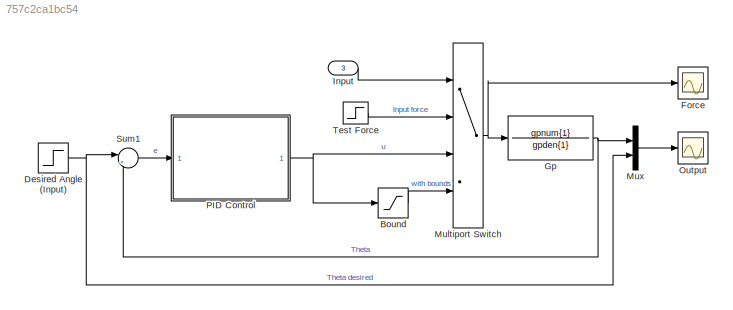
MODEL slx_757c2ca1bc54
KIND model
CONFIG AbsTol = auto
CONFIG EnableMultiTasking = off
CONFIG FixedStep = auto
CONFIG InitFcn = modelParam
CONFIG MaxStep = auto
CONFIG MinStep = auto
CONFIG RelTol = 1e-3
CONFIG SampleTimeConstraint = Unconstrained
CONFIG Solver = VariableStepAuto
CONFIG SolverName = VariableStepAuto
CONFIG StartTime = 0.0
CONFIG StopTime = 10.0
BLOCK [Saturate] Bound 
  LowerLimit = 0
  UpperLimit = 0.411
BLOCK [Step] Desired Angle (Input)
  After = 15
  SampleTime = 0
BLOCK [Scope] Force
  Floating = off
  NumInputPorts = 1
  Ports = [1]
  ScopeSpecificationString = Simulink.scopes.TimeScopeBlockCfg('CurrentConfiguration', extmgr.ConfigurationSet(extmgr.Configuration('Core','General UI',true),extmgr.Configuration('Core','Source UI',true),extmgr.Configuration('Sources','WiredSimulink',true),extmgr.Configuration('Visuals','Time Domain',true,'SerializedDisplays',{struct('MinYLimReal','-0.21966','MaxYLimReal','0.48107','YLabelReal','','MinYLimMag','0.00000','MaxY...<+1383ch>
BLOCK [TransferFcn] Gp
  Denominator = gpden{1}
  Numerator = gpnum{1}
BLOCK [Inport] Input
  Port = 3
BLOCK [MultiPortSwitch] Multiport Switch
  InputSameDT = off
  Ports = [4, 1]
  SaturateOnIntegerOverflow = off
BLOCK [Mux] Mux
  DisplayOption = bar
  Inputs = 2
  Ports = [2, 1]
BLOCK [Scope] Output 
  Floating = off
  NumInputPorts = 1
  Ports = [1]
  ScopeSpecificationString = Simulink.scopes.TimeScopeBlockCfg('CurrentConfiguration', extmgr.ConfigurationSet(extmgr.Configuration('Core','General UI',true),extmgr.Configuration('Core','Source UI',true),extmgr.Configuration('Sources','WiredSimulink',true,'DataLoggingVariableName','ScopeData2'),extmgr.Configuration('Visuals','Time Domain',true,'SerializedDisplays',{struct('MinYLimReal','-1.99773','MaxYLimReal','17.97954','YLa...<+1482ch>
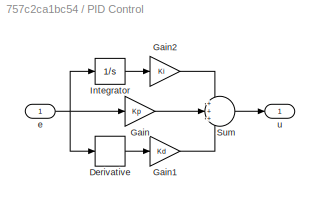
BLOCK [SubSystem] PID Control
  Ports = [1, 1]
  RequestExecContextInheritance = off
BLOCK [Derivative] PID Control/Derivative
BLOCK [Gain] PID Control/Gain
  Gain = Kp
BLOCK [Gain] PID Control/Gain1
  Gain = Kd
BLOCK [Gain] PID Control/Gain2
  Gain = Ki
BLOCK [Integrator] PID Control/Integrator
  Ports = [1, 1]
BLOCK [Sum] PID Control/Sum
  Inputs = +++
  Ports = [3, 1]
BLOCK [Inport] PID Control/e
BLOCK [Outport] PID Control/u
BLOCK [Sum] Sum1
  Inputs = |+-
  Ports = [2, 1]
BLOCK [Step] Test Force
  After = 0.0901
  SampleTime = 0
LINE Bound :1 -> Multiport Switch:4
NET Desired Angle (Input):1 -> Mux:2, Sum1:1
NET Gp:1 -> Mux:1, Sum1:2
LINE Input:1 -> Multiport Switch:1
NET Multiport Switch:1 -> Force:1, Gp:1
LINE Mux:1 -> Output :1
LINE PID Control/Derivative:1 -> PID Control/Gain1:1
LINE PID Control/Gain1:1 -> PID Control/Sum:3
LINE PID Control/Gain2:1 -> PID Control/Sum:1
LINE PID Control/Gain:1 -> PID Control/Sum:2
LINE PID Control/Integrator:1 -> PID Control/Gain2:1
LINE PID Control/Sum:1 -> PID Control/u:1
NET PID Control/e:1 -> PID Control/Derivative:1, PID Control/Gain:1, PID Control/Integrator:1
NET PID Control:1 -> Bound :1, Multiport Switch:3
LINE Sum1:1 -> PID Control:1
LINE Test Force:1 -> Multiport Switch:2
note: NET lines group one-source signal fan-out (src -> all destinations, sorted); 1:1 wires keep LINE
